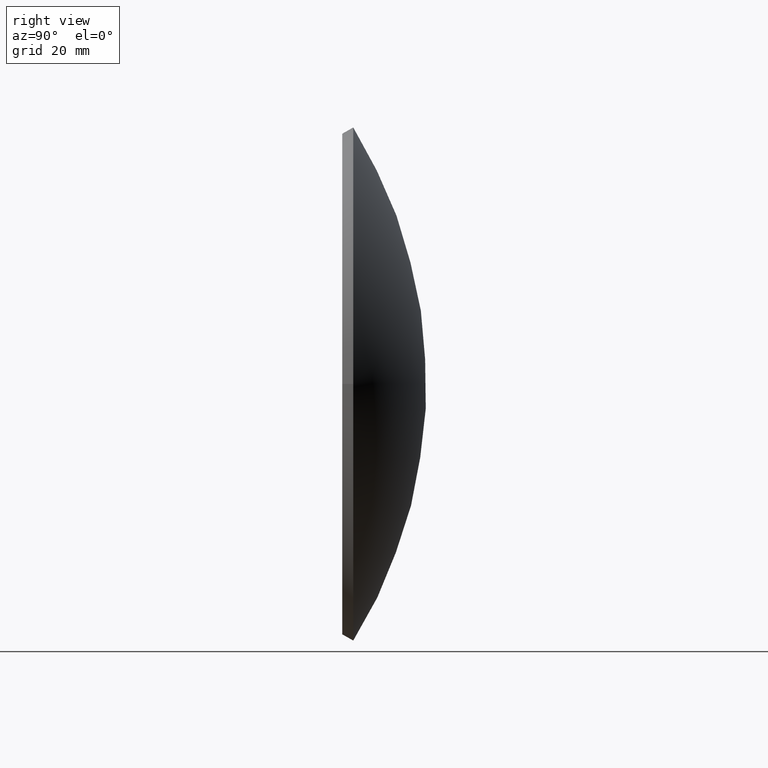
[diagram: clean part render]
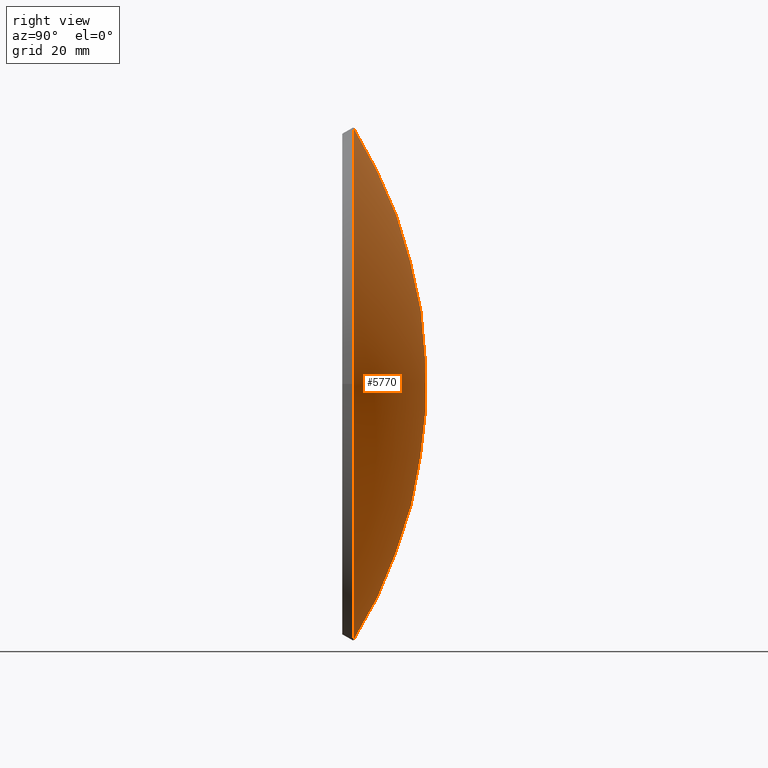
[diagram: same view with one face highlighted and labeled with its STEP entity id]
A machine part, right view. The second image highlights one B-rep face of the part: STEP entity #5770.
In plain terms, the highlighted spherical surface has radius 151.139 mm.
Its self-contained STEP definition (entity closure, byte-faithful):
#73 = EDGE_CURVE ( 'NONE', #8307, #8307, #8139, .T. ) ;
#186 = DIRECTION ( 'NONE',  ( 0.000000000000000000, -0.000000000000000000, 1.000000000000000000 ) ) ;
#2869 = CARTESIAN_POINT ( 'NONE',  ( 2.449782889260564005E-26, -125.1395063036602977, 0.000000000000000000 ) ) ;
#4342 = FACE_OUTER_BOUND ( 'NONE', #11151, .T. ) ;
#4587 = AXIS2_PLACEMENT_3D ( 'NONE', #9772, #11724, #10699 ) ;
#5639 = DIRECTION ( 'NONE',  ( 1.000000000000000000, 2.203705143236137540E-15, 0.000000000000000000 ) ) ;
#5770 = ADVANCED_FACE ( 'NONE', ( #4342 ), #7417, .T. ) ;
#7417 = SPHERICAL_SURFACE ( 'NONE', #9591, 151.1395063036603403 ) ;
#8139 = CIRCLE ( 'NONE', #4587, 79.49999999999992895 ) ;
#8307 = VERTEX_POINT ( 'NONE', #11364 ) ;
#9153 = ORIENTED_EDGE ( 'NONE', *, *, #73, .F. ) ;
#9591 = AXIS2_PLACEMENT_3D ( 'NONE', #2869, #186, #5639 ) ;
#9772 = CARTESIAN_POINT ( 'NONE',  ( 5.090044097038611020E-14, 3.401928127865161411, 0.000000000000000000 ) ) ;
#10699 = DIRECTION ( 'NONE',  ( 1.000000000000000000, 2.252958476661704444E-15, 0.000000000000000000 ) ) ;
#11151 = EDGE_LOOP ( 'NONE', ( #9153 ) ) ;
#11364 = CARTESIAN_POINT ( 'NONE',  ( 79.49999999999998579, 3.401928127865340379, 0.000000000000000000 ) ) ;
#11724 = DIRECTION ( 'NONE',  ( 2.252424067786322669E-15, -1.000000000000000000, -0.000000000000000000 ) ) ;